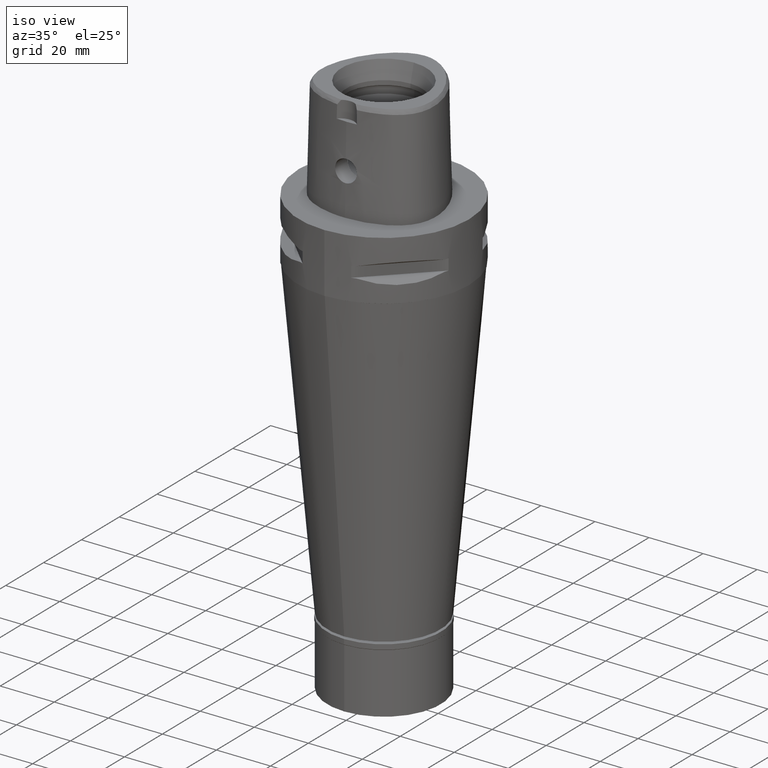
[diagram: clean part render]
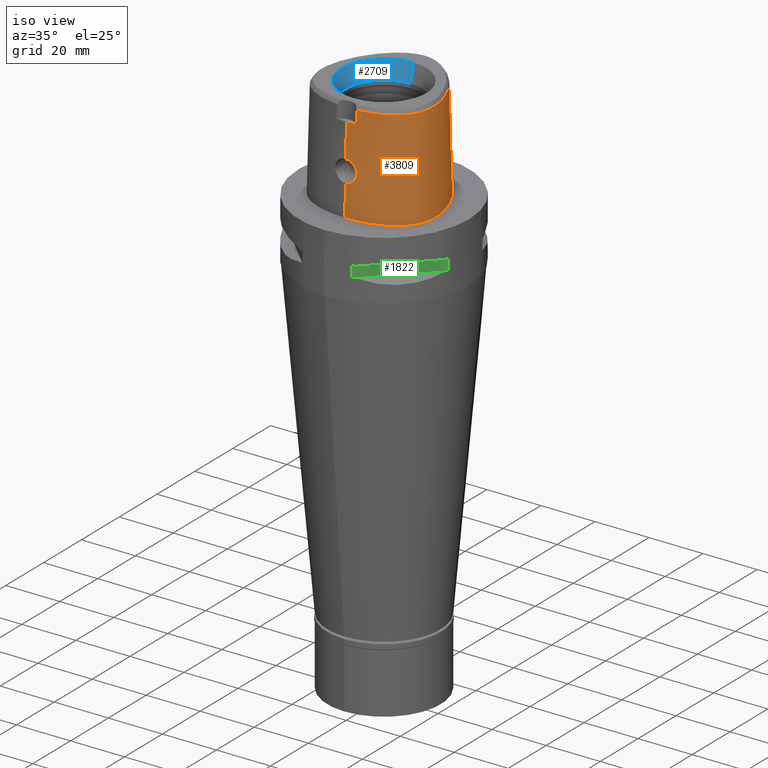
[diagram: same view with three faces highlighted in distinct colors, each labeled with its STEP entity id]
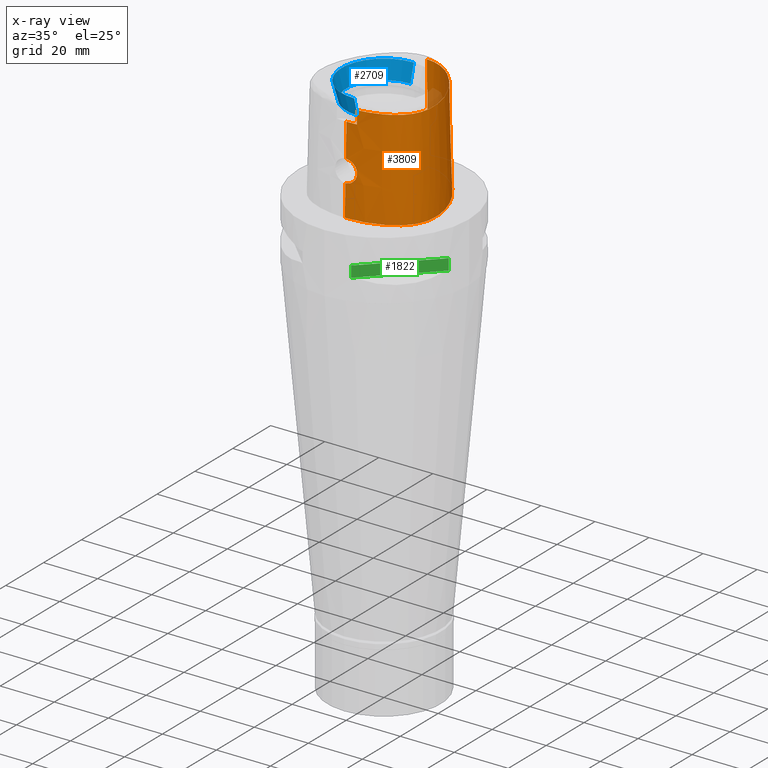
[diagram: x-ray of the same camera — body ghosted, the three highlighted faces saturated]
A machine part, iso view with three faces highlighted in distinct colors.
The next image is the same camera in x-ray (body ghosted, the three faces saturated) — at least one of them is partly hidden behind the body in this view.
Their STEP definitions:

[orange] entity #3809 — the highlighted face is a freeform B-spline surface patch.
#8 = CARTESIAN_POINT ( 'NONE',  ( -0.6657939564106000185, -19.73734232019999979, 37.25231677540000419 ) ) ;
#60 = CARTESIAN_POINT ( 'NONE',  ( 14.68244497000000059, -17.23001772821000088, -0.7304375838314000058 ) ) ;
#62 = CARTESIAN_POINT ( 'NONE',  ( 16.39211273426609594, -14.95758104716074932, 36.52186680739955449 ) ) ;
#81 = CARTESIAN_POINT ( 'NONE',  ( 18.12052909025000247, -13.74516032106999930, 24.59139865566000083 ) ) ;
#118 = CARTESIAN_POINT ( 'NONE',  ( 1.029075032816727298, -20.37061658179028711, 11.58059618244477029 ) ) ;
#122 = EDGE_CURVE ( 'NONE', #2846, #2325, #1752, .T. ) ;
#142 = CARTESIAN_POINT ( 'NONE',  ( 3.637738219117000238, -19.56971420299000286, 36.52185956443999970 ) ) ;
#153 = CARTESIAN_POINT ( 'NONE',  ( 6.341471019211626370, -20.29812500000441844, 8.272462576064400094E-14 ) ) ;
#156 = CARTESIAN_POINT ( 'NONE',  ( 2.282426779291145458, -20.29697268062908577, 12.15178042133221048 ) ) ;
#187 = CARTESIAN_POINT ( 'NONE',  ( 1.528203702475598114, -20.34813849356515192, 11.74937770678980264 ) ) ;
#197 = CARTESIAN_POINT ( 'NONE',  ( -1.812907624365000383E-11, 22.56201468012000078, 36.52186680743999858 ) ) ;
#198 = CARTESIAN_POINT ( 'NONE',  ( 10.14358078388000095, 18.45723421046000112, 37.25231677540000419 ) ) ;
#220 = CARTESIAN_POINT ( 'NONE',  ( 2.373090332134999869, 22.37624354104000091, 37.25231677540000419 ) ) ;
#223 = CARTESIAN_POINT ( 'NONE',  ( 3.704239288984441103, -19.64128042389065598, 33.37395322129999897 ) ) ;
#227 = CARTESIAN_POINT ( 'NONE',  ( 3.438614496833577228, -20.17221373686729535, 13.35618706787884946 ) ) ;
#244 = CARTESIAN_POINT ( 'NONE',  ( 2.438150623185000310, 22.68791648787000170, 24.59139865566000083 ) ) ;
#252 = CARTESIAN_POINT ( 'NONE',  ( 3.266229437020721438, -20.07524359687617377, 17.89916302261439540 ) ) ;
#272 = CARTESIAN_POINT ( 'NONE',  ( 20.76670354687000142, 4.663413653177999940, -0.7304375838314000058 ) ) ;
#279 = CARTESIAN_POINT ( 'NONE',  ( 3.756069937840027961, -20.04746516202720841, 17.01476473572080295 ) ) ;
#294 = CARTESIAN_POINT ( 'NONE',  ( 20.09084478000999852, -11.59945464141000038, 11.93048053591000013 ) ) ;
#301 = CARTESIAN_POINT ( 'NONE',  ( 0.4954876483524821573, -20.18628283969000492, 19.54999999999999716 ) ) ;
#308 = B_SPLINE_SURFACE_WITH_KNOTS ( 'NONE', 3, 3, ( 
 ( #1291, #2001, #3508, #8 ),
 ( #2761, #3131, #4721, #4286 ),
 ( #3959, #1944, #3567, #4696 ),
 ( #4336, #1216, #2355, #823 ),
 ( #1193, #1640, #3982, #3211 ),
 ( #60, #4311, #798, #1974 ),
 ( #3590, #1612, #3180, #1238 ),
 ( #2789, #4366, #81, #2981 ),
 ( #3731, #4165, #2138, #3347 ),
 ( #3789, #294, #1371, #629 ),
 ( #1830, #1850, #2182, #3003 ),
 ( #3710, #4194, #3324, #684 ),
 ( #2211, #2841, #2237, #4144 ),
 ( #1755, #2957, #4912, #608 ),
 ( #2620, #1804, #3811, #1399 ),
 ( #272, #3403, #4546, #4122 ),
 ( #1044, #4496, #1424, #1778 ),
 ( #4962, #3425, #2593, #4033 ),
 ( #2924, #655, #4885, #198 ),
 ( #4525, #4982, #1443, #1020 ),
 ( #3756, #995, #4573, #1072 ),
 ( #4413, #2549, #244, #220 ),
 ( #2570, #3380, #906, #2459 ),
 ( #583, #2159, #4940, #2285 ),
 ( #1580, #3832, #2696, #1988 ) ),
 .UNSPECIFIED., .F., .F., .F.,
 ( 4, 1, 1, 1, 1, 1, 1, 1, 1, 1, 1, 1, 1, 1, 1, 1, 1, 1, 1, 1, 1, 1, 4 ),
 ( 4, 4 ),
 ( -0.008985960173571999957, 0.0000000000000000000, 0.08333333333337000770, 0.1666666666667000196, 0.2083333333333000081, 0.2500000000000000000, 0.2916666666666999919, 0.3124999999998999689, 0.3333333333332000326, 0.3541666666666000163, 0.3749999999998999689, 0.4166666666666000163, 0.4583333333332000326, 0.4999999999998999689, 0.5833333333331000015, 0.6666666666664999852, 0.7499999999998000488, 0.8333333333329999704, 0.8749999999997000177, 0.9166666666664000651, 0.9583333333329999704, 1.000000000000000000, 1.011710456763000199 ),
 ( 3.724331815169000051E-09, 0.9999998100590999917 ),
 .UNSPECIFIED. ) ;
#326 = CARTESIAN_POINT ( 'NONE',  ( 4.048214080092304101, -20.05577732092616827, 15.37582243512925650 ) ) ;
#450 = CARTESIAN_POINT ( 'NONE',  ( 14.22011350746591596, -16.41829354687929765, 36.52186680739955449 ) ) ;
#508 = ORIENTED_EDGE ( 'NONE', *, *, #4844, .T. ) ;
#512 = CARTESIAN_POINT ( 'NONE',  ( 2.503154195452031772, -19.81241979350864568, 31.80000012137773524 ) ) ;
#514 = ORIENTED_EDGE ( 'NONE', *, *, #3490, .F. ) ;
#527 = CARTESIAN_POINT ( 'NONE',  ( 17.90324024157959215, -13.53935104436711967, 36.52186680739955449 ) ) ;
#583 = CARTESIAN_POINT ( 'NONE',  ( -0.4812391253146999781, 23.48607176047999801, -0.7304375838314000058 ) ) ;
#594 = CARTESIAN_POINT ( 'NONE',  ( 22.05732874321672554, -6.847636718749787299, 8.272462576064398831E-14 ) ) ;
#608 = CARTESIAN_POINT ( 'NONE',  ( 21.31039837242000345, -4.105938496789999448, 37.25231677540000419 ) ) ;
#617 = CARTESIAN_POINT ( 'NONE',  ( 2.844443223519995456, -20.24438370416207889, 12.61699047241434890 ) ) ;
#629 = CARTESIAN_POINT ( 'NONE',  ( 19.54161185391000188, -11.28235486248999919, 37.25231677540000419 ) ) ;
#633 = CARTESIAN_POINT ( 'NONE',  ( 3.637738219117000238, -19.56971420299000286, 36.52185956443999970 ) ) ;
#637 = CARTESIAN_POINT ( 'NONE',  ( 2.360818685576765663, -20.12553152717674010, 18.79091723954073601 ) ) ;
#655 = CARTESIAN_POINT ( 'NONE',  ( 10.55288408568999969, 18.94467590726999973, 11.93048053591000013 ) ) ;
#657 = CARTESIAN_POINT ( 'NONE',  ( -1.812907624365000383E-11, 22.56201468012000078, 36.52186680743999858 ) ) ;
#665 = CARTESIAN_POINT ( 'NONE',  ( 1.615797869211351045, -20.15746371882925558, 19.21438957845422024 ) ) ;
#684 = CARTESIAN_POINT ( 'NONE',  ( 20.65947761832000040, -8.729764392901000036, 37.25231677540000419 ) ) ;
#690 = CARTESIAN_POINT ( 'NONE',  ( 3.927835586672352441, -20.09244225005366147, 14.47776275463072437 ) ) ;
#713 = CARTESIAN_POINT ( 'NONE',  ( 2.306577398820751412, -20.12825059843537190, 18.82915933036016298 ) ) ;
#798 = CARTESIAN_POINT ( 'NONE',  ( 14.36818034196999960, -16.67825731694999902, 24.59139865566000083 ) ) ;
#823 = CARTESIAN_POINT ( 'NONE',  ( 6.175998609166999387, -19.37631798792000026, 37.25231677540000419 ) ) ;
#906 = CARTESIAN_POINT ( 'NONE',  ( 0.5826623333995999410, 22.88447448261999995, 24.59139865566000083 ) ) ;
#911 = CARTESIAN_POINT ( 'NONE',  ( 1.488283991415337182, -20.35025562760707629, 11.73330004244571612 ) ) ;
#936 = CARTESIAN_POINT ( 'NONE',  ( 20.74942740879365033, 4.657187499999517755, 8.272462576064398831E-14 ) ) ;
#937 = CARTESIAN_POINT ( 'NONE',  ( 1.946932004676015460, -20.32307767112847330, 11.93880059974637220 ) ) ;
#955 = CARTESIAN_POINT ( 'NONE',  ( 2.714805267639514685, -20.25771215066832198, 12.49436786205451000 ) ) ;
#976 = CARTESIAN_POINT ( 'NONE',  ( 14.67337964419171747, -17.21410156250057355, 8.272462576064398831E-14 ) ) ;
#987 = CARTESIAN_POINT ( 'NONE',  ( 2.041042029990999821E-08, -19.88004246002000031, 31.80000004972000127 ) ) ;
#995 = CARTESIAN_POINT ( 'NONE',  ( 4.987110684473000433, 22.24795284821000152, 11.93048053591000013 ) ) ;
#1005 = CARTESIAN_POINT ( 'NONE',  ( 2.041042029990999821E-08, -19.88004246002000031, 31.80000004972000127 ) ) ;
#1008 = CARTESIAN_POINT ( 'NONE',  ( 4.038472190140932838, -20.06169765068718647, 15.18805390983103010 ) ) ;
#1020 = CARTESIAN_POINT ( 'NONE',  ( 7.099337800131999998, 20.50831394757999959, 37.25231677540000419 ) ) ;
#1030 = CARTESIAN_POINT ( 'NONE',  ( 2.113823673067903197, -20.67499999999817462, 8.272462576064398831E-14 ) ) ;
#1031 = CARTESIAN_POINT ( 'NONE',  ( 2.673773366373647598, -20.10928484861024401, 18.54484060076604734 ) ) ;
#1044 = CARTESIAN_POINT ( 'NONE',  ( 18.08416038108999757, 10.44089487092999846, -0.7304375838314000058 ) ) ;
#1054 = CARTESIAN_POINT ( 'NONE',  ( 3.560199545960235135, -20.05783334522597272, 17.44879127146176501 ) ) ;
#1059 = CARTESIAN_POINT ( 'NONE',  ( 0.7901461619506587875, 22.56201467849566100, 36.52186680739955449 ) ) ;
#1072 = CARTESIAN_POINT ( 'NONE',  ( 4.750826222997999615, 21.65775806429000028, 37.25231677540000419 ) ) ;
#1082 = B_SPLINE_CURVE_WITH_KNOTS ( 'NONE', 3,
 ( #2607, #1059, #4181, #3415, #1455, #2634, #5001, #1486, #4206, #2659, #4416, #2078, #4746, #3647, #4368, #1568, #527, #62, #450, #4723, #2386, #2763, #3134 ),
 .UNSPECIFIED., .F., .F.,
 ( 4, 1, 1, 1, 1, 1, 1, 1, 1, 1, 1, 1, 1, 1, 1, 1, 1, 1, 1, 1, 4 ),
 ( 0.0000000000000000000, 0.04382683003322050685, 0.08765366006602014204, 0.1314804900989251235, 0.1753073201318300911, 0.2629609801974294725, 0.3506146402631342140, 0.4382683003289440382, 0.5259219603945435306, 0.5697487904274484150, 0.6135756204602481612, 0.6574024504931531565, 0.6793158655095529186, 0.7012292805260580408, 0.7231426955424579139, 0.7450561105587525379, 0.7888829405916575332, 0.8327097706245624176, 0.8765366006573621638, 0.9641902607230983246, 1.000000000000000000 ),
 .UNSPECIFIED. ) ;
#1108 = CARTESIAN_POINT ( 'NONE',  ( 3.787481123649921066, -20.04605982308304135, 16.93510773912660028 ) ) ;
#1193 = CARTESIAN_POINT ( 'NONE',  ( 11.23887130169999971, -18.91049775788000176, -0.7304375838314000058 ) ) ;
#1216 = CARTESIAN_POINT ( 'NONE',  ( 6.288476587236999649, -20.00290576084000094, 11.93048053591000013 ) ) ;
#1223 = VERTEX_POINT ( 'NONE', #197 ) ;
#1238 = CARTESIAN_POINT ( 'NONE',  ( 16.38077695839999848, -14.94316464535999955, 37.25231677540000419 ) ) ;
#1291 = CARTESIAN_POINT ( 'NONE',  ( -0.6840631435738999677, -20.68668116151000191, -0.7304375838314000058 ) ) ;
#1314 = CARTESIAN_POINT ( 'NONE',  ( 18.56841065141249203, -14.16937988280826666, 8.272462576064398831E-14 ) ) ;
#1339 = CARTESIAN_POINT ( 'NONE',  ( 3.799129736973999684E-11, 23.47499999999000053, 6.972200594645999482E-14 ) ) ;
#1340 = CARTESIAN_POINT ( 'NONE',  ( 1.223097168518407996, -20.36283687392326414, 11.63851210756520160 ) ) ;
#1346 = CARTESIAN_POINT ( 'NONE',  ( 6.841558715605016302E-09, -20.08420636276333937, 23.63333344114104406 ) ) ;
#1357 = CARTESIAN_POINT ( 'NONE',  ( -6.936546298697000348E-13, -20.38876923348000147, 11.44999999999999929 ) ) ;
#1371 = CARTESIAN_POINT ( 'NONE',  ( 19.81622831695999665, -11.44090475194999890, 24.59139865566000083 ) ) ;
#1379 = CARTESIAN_POINT ( 'NONE',  ( 20.93173252211499857, -10.60431640624921812, 8.272462576064398831E-14 ) ) ;
#1380 = CARTESIAN_POINT ( 'NONE',  ( -6.936546298697000348E-13, -20.38876923348000147, 11.44999999999999929 ) ) ;
#1399 = CARTESIAN_POINT ( 'NONE',  ( 21.05621915657000187, -0.4440251511041000132, 37.25231677540000419 ) ) ;
#1413 = CARTESIAN_POINT ( 'NONE',  ( 3.346839698137018093, -20.07044986577229650, 17.78445641054263859 ) ) ;
#1418 = CARTESIAN_POINT ( 'NONE',  ( 6.821570765464663792E-09, -19.98212988583510707, 27.71666688228189912 ) ) ;
#1424 = CARTESIAN_POINT ( 'NONE',  ( 17.53318585915999961, 10.12278934540000108, 24.59139865566000083 ) ) ;
#1432 = CARTESIAN_POINT ( 'NONE',  ( 3.860417298872394376, -20.04330287886046946, 16.72646853219081819 ) ) ;
#1443 = CARTESIAN_POINT ( 'NONE',  ( 7.259695479736000046, 20.78233571866999796, 24.59139865566000083 ) ) ;
#1451 = CARTESIAN_POINT ( 'NONE',  ( 1.028316776408453537, -20.17741541788669934, 19.45785258273985008 ) ) ;
#1455 = CARTESIAN_POINT ( 'NONE',  ( 7.108589361577037913, 20.52412316394416436, 36.52186680739955449 ) ) ;
#1476 = CARTESIAN_POINT ( 'NONE',  ( 3.728050960354355237, -20.12836678376847033, 13.91746580426512736 ) ) ;
#1486 = CARTESIAN_POINT ( 'NONE',  ( 17.27359236349014537, 9.972912859139864139, 36.52186680739955449 ) ) ;
#1503 = CARTESIAN_POINT ( 'NONE',  ( 3.047166273135561099, -20.22275119218791062, 12.81895386053285613 ) ) ;
#1543 = VECTOR ( 'NONE', #2118, 1000.000000000000114 ) ;
#1565 = B_SPLINE_CURVE_WITH_KNOTS ( 'NONE', 3,
 ( #987, #1418, #1346, #3296 ),
 .UNSPECIFIED., .F., .F.,
 ( 4, 4 ),
 ( 0.0000000000000000000, 1.000000000000000000 ),
 .UNSPECIFIED. ) ;
#1568 = CARTESIAN_POINT ( 'NONE',  ( 18.90964962507477765, -12.28759713487705874, 36.52186680739955449 ) ) ;
#1580 = CARTESIAN_POINT ( 'NONE',  ( -0.7217521646258999723, 23.47150798456999965, -0.7304375838314000058 ) ) ;
#1612 = CARTESIAN_POINT ( 'NONE',  ( 16.77374385921000410, -15.44292476796000102, 11.93048053591000013 ) ) ;
#1640 = CARTESIAN_POINT ( 'NONE',  ( 11.13012657160999908, -18.61140120457999814, 11.93048053591000013 ) ) ;
#1655 = VERTEX_POINT ( 'NONE', #4913 ) ;
#1675 = CARTESIAN_POINT ( 'NONE',  ( 1.319918021587722201, -20.35862286549530964, 11.67005492354040719 ) ) ;
#1693 = CARTESIAN_POINT ( 'NONE',  ( 1.538196023384282407, -20.34760033576342408, 11.75346900688112228 ) ) ;
#1741 = CARTESIAN_POINT ( 'NONE',  ( 2.397021025743683253, -20.28738711155108021, 12.23221059366157881 ) ) ;
#1752 = B_SPLINE_CURVE_WITH_KNOTS ( 'NONE', 3,
 ( #4890, #223, #2596, #633 ),
 .UNSPECIFIED., .F., .F.,
 ( 4, 4 ),
 ( 0.0000000000000000000, 1.000000000000000000 ),
 .UNSPECIFIED. ) ;
#1755 = CARTESIAN_POINT ( 'NONE',  ( 22.26285556298000046, -4.100361500063000264, -0.7304375838314000058 ) ) ;
#1764 = CARTESIAN_POINT ( 'NONE',  ( 7.571159434350515305, 21.31457031249845713, 8.272462576064398831E-14 ) ) ;
#1778 = CARTESIAN_POINT ( 'NONE',  ( 17.25769859819999752, 9.963736582635000616, 37.25231677540000419 ) ) ;
#1785 = CARTESIAN_POINT ( 'NONE',  ( 3.507024072564136841, -20.16249844635295929, 13.46998661760523319 ) ) ;
#1804 = CARTESIAN_POINT ( 'NONE',  ( 21.68301106123999844, -0.3332743947980000288, 11.93048053591000013 ) ) ;
#1815 = CARTESIAN_POINT ( 'NONE',  ( 3.664531516593255933, -20.05177522854884486, 17.23667186347703506 ) ) ;
#1830 = CARTESIAN_POINT ( 'NONE',  ( 20.94844325647000360, -10.61175396900999957, -0.7304375838314000058 ) ) ;
#1838 = CARTESIAN_POINT ( 'NONE',  ( 3.714884036183550897, -20.13054316305255043, 13.88679975161858771 ) ) ;
#1850 = CARTESIAN_POINT ( 'NONE',  ( 20.65879052764999813, -10.48283621449000158, 11.93048053591000013 ) ) ;
#1861 = CARTESIAN_POINT ( 'NONE',  ( 2.808534909594999185, -20.24816297014837119, 12.58189563908294772 ) ) ;
#1862 = EDGE_CURVE ( 'NONE', #1223, #2116, #4167, .T. ) ;
#1890 = CARTESIAN_POINT ( 'NONE',  ( 4.049638794384611273, -20.05404294443376756, 15.43768675189062201 ) ) ;
#1944 = CARTESIAN_POINT ( 'NONE',  ( 1.870063864395000053, -20.39691455662999786, 11.93048053591000013 ) ) ;
#1974 = CARTESIAN_POINT ( 'NONE',  ( 14.21104802796000044, -16.40237711131999987, 37.25231677540000419 ) ) ;
#1981 = ORIENTED_EDGE ( 'NONE', *, *, #122, .F. ) ;
#1988 = CARTESIAN_POINT ( 'NONE',  ( -0.6642815369397000458, 22.52377652691999899, 37.25231677540000419 ) ) ;
#2001 = CARTESIAN_POINT ( 'NONE',  ( -0.6779734145193999639, -20.37023488108000180, 11.93048053591000013 ) ) ;
#2055 = CARTESIAN_POINT ( 'NONE',  ( 0.2521712344239960824, -20.38876923348000858, 11.44999999999999751 ) ) ;
#2078 = CARTESIAN_POINT ( 'NONE',  ( 21.14970177531030515, -6.717195943319264728, 36.52186680739955449 ) ) ;
#2080 = CARTESIAN_POINT ( 'NONE',  ( 0.5103796633626155321, -20.38531158553910672, 11.47362071399299488 ) ) ;
#2116 = VERTEX_POINT ( 'NONE', #2647 ) ;
#2118 = DIRECTION ( 'NONE',  ( -4.234888734594874864E-13, -0.02499051295389925070, -0.9996876883618708298 ) ) ;
#2121 = CARTESIAN_POINT ( 'NONE',  ( 1.512241740947312119, -20.34898939911309412, 11.74291348788425182 ) ) ;
#2138 = CARTESIAN_POINT ( 'NONE',  ( 19.15132530712000047, -12.46323155742999944, 24.59139865566000083 ) ) ;
#2147 = CARTESIAN_POINT ( 'NONE',  ( 22.24453907854652357, -4.100468750000057838, 8.272462576064398831E-14 ) ) ;
#2159 = CARTESIAN_POINT ( 'NONE',  ( -0.4685451983326999748, 23.16976078520999849, 11.93048053591000013 ) ) ;
#2168 = CARTESIAN_POINT ( 'NONE',  ( 3.828843160387038314, -20.04436026481759825, 16.82309517697779810 ) ) ;
#2182 = CARTESIAN_POINT ( 'NONE',  ( 20.36913779882999620, -10.35391845995999915, 24.59139865566000083 ) ) ;
#2190 = CARTESIAN_POINT ( 'NONE',  ( 2.441475652817581388, -20.12145690552322819, 18.73255419730240945 ) ) ;
#2211 = CARTESIAN_POINT ( 'NONE',  ( 22.07548128872999982, -6.850245535142999387, -0.7304375838314000058 ) ) ;
#2216 = EDGE_LOOP ( 'NONE', ( #3460, #2796, #1981, #4231, #2440, #514, #508, #3564 ) ) ;
#2223 = CARTESIAN_POINT ( 'NONE',  ( 3.217746676397107208, -20.20246117936812880, 13.02641545331656481 ) ) ;
#2237 = CARTESIAN_POINT ( 'NONE',  ( 21.44619304427000017, -6.759806566843999498, 24.59139865566000083 ) ) ;
#2238 = B_SPLINE_CURVE_WITH_KNOTS ( 'NONE', 3,
 ( #4441, #1030, #153, #4825, #976, #3356, #1314, #2866, #2528, #1379, #4058, #594, #2147, #2890, #936, #4922, #3719, #3287, #1764, #2933, #4851, #3331, #1339 ),
 .UNSPECIFIED., .F., .F.,
 ( 4, 1, 1, 1, 1, 1, 1, 1, 1, 1, 1, 1, 1, 1, 1, 1, 1, 1, 1, 1, 4 ),
 ( 0.0000000000000000000, 0.08333333333337000770, 0.1666666666667000196, 0.2083333333333000081, 0.2500000000000000000, 0.2916666666666999919, 0.3124999999998999689, 0.3333333333332000326, 0.3541666666666000163, 0.3749999999998999689, 0.4166666666666000163, 0.4583333333332000326, 0.4999999999998999689, 0.5833333333331000015, 0.6666666666664999852, 0.7499999999998000488, 0.8333333333329999704, 0.8749999999997000177, 0.9166666666664000651, 0.9583333333329999704, 1.000000000000000000 ),
 .UNSPECIFIED. ) ;
#2244 = CARTESIAN_POINT ( 'NONE',  ( 4.002668943114965572, -20.07400334792053087, 14.86854796123505729 ) ) ;
#2266 = CARTESIAN_POINT ( 'NONE',  ( 3.918450559639469866, -20.04172061130668325, 16.53268210946603389 ) ) ;
#2285 = CARTESIAN_POINT ( 'NONE',  ( -0.4431573443685999925, 22.53713883466999945, 37.25231677540000419 ) ) ;
#2288 = EDGE_CURVE ( 'NONE', #2846, #4860, #4923, .T. ) ;
#2325 = VERTEX_POINT ( 'NONE', #142 ) ;
#2344 = B_SPLINE_CURVE_WITH_KNOTS ( 'NONE', 3,
 ( #1380, #2055, #2080, #3627, #118, #1340, #1675, #4805, #911, #2121, #187, #1693, #4443, #937, #156, #1741, #2891, #4462, #955, #2507, #1861, #4949, #617, #3432, #1503, #2223, #227, #1785, #4152, #3044, #4992, #1838, #1476, #4610, #3843, #690, #2244, #2580, #1008, #4223, #326, #1890, #4556, #3797, #3459, #4534, #2266, #1432, #2168, #1108, #3067, #279, #3358, #4924, #1815, #1054, #1413, #252, #5024, #2558, #4175, #3740, #4132, #4201, #3410, #2968, #2654, #1031, #2630, #2190, #637, #713, #3819, #3766, #3389, #4970, #2989, #2600, #665, #1451, #301, #3013 ),
 .UNSPECIFIED., .F., .F.,
 ( 4, 2, 2, 1, 1, 1, 2, 2, 2, 2, 2, 1, 1, 2, 2, 2, 2, 1, 1, 2, 2, 2, 2, 1, 2, 2, 2, 2, 1, 1, 1, 2, 2, 2, 2, 2, 1, 1, 2, 2, 2, 1, 2, 2, 2, 2, 2, 4 ),
 ( 0.0000000000000000000, 0.06249999999999680811, 0.09374999999999525380, 0.1093749999999945044, 0.1171874999999941436, 0.1210937499999939770, 0.1230468749999939909, 0.1249999999999940048, 0.1874999999999988620, 0.2187500000000011380, 0.2343750000000023315, 0.2421875000000029143, 0.2460937500000032196, 0.2480468750000034972, 0.2500000000000037748, 0.3125000000000161537, 0.3437500000000225375, 0.3593750000000257017, 0.3671875000000273115, 0.3710937500000281442, 0.3750000000000289213, 0.4375000000000430211, 0.4687500000000503486, 0.4843750000000539568, 0.4921875000000559552, 0.5000000000000579536, 0.5625000000000732747, 0.5937500000000809353, 0.6093750000000843769, 0.6171875000000860423, 0.6210937500000864864, 0.6230468750000863754, 0.6250000000000862643, 0.6875000000000813793, 0.7187500000000788258, 0.7343750000000773825, 0.7421875000000767164, 0.7460937500000764944, 0.7480468750000761613, 0.7500000000000758282, 0.7812500000000663913, 0.7968750000000615064, 0.8046875000000591749, 0.8125000000000567324, 0.8437500000000472955, 0.8593750000000425215, 0.8750000000000376366, 1.000000000000000000 ),
 .UNSPECIFIED. ) ;
#2355 = CARTESIAN_POINT ( 'NONE',  ( 6.232237598201999518, -19.68961187437999882, 24.59139865566000083 ) ) ;
#2386 = CARTESIAN_POINT ( 'NONE',  ( 7.300578979383865352, -19.07170738130680832, 36.52186680739955449 ) ) ;
#2440 = ORIENTED_EDGE ( 'NONE', *, *, #3935, .T. ) ;
#2443 = CARTESIAN_POINT ( 'NONE',  ( 3.736696120837999402, -19.67778323291999953, 31.80000004972999861 ) ) ;
#2459 = CARTESIAN_POINT ( 'NONE',  ( 0.5662264631412998739, 22.56729423635999865, 37.25231677540000419 ) ) ;
#2507 = CARTESIAN_POINT ( 'NONE',  ( 2.758139611129263091, -20.25337176693246732, 12.53387256028085517 ) ) ;
#2528 = CARTESIAN_POINT ( 'NONE',  ( 20.34961798556690837, -11.74885742187212223, 8.272462576064398831E-14 ) ) ;
#2549 = CARTESIAN_POINT ( 'NONE',  ( 2.503210914235999951, 22.99958943470999628, 11.93048053591000013 ) ) ;
#2558 = CARTESIAN_POINT ( 'NONE',  ( 3.080402072178444861, -20.08615456365791729, 18.13051688291887942 ) ) ;
#2570 = CARTESIAN_POINT ( 'NONE',  ( 0.6155340739162999952, 23.51883497514999988, -0.7304375838314000058 ) ) ;
#2580 = CARTESIAN_POINT ( 'NONE',  ( 4.020733927300638832, -20.06862206084555922, 14.99753541347952002 ) ) ;
#2593 = CARTESIAN_POINT ( 'NONE',  ( 13.93560872666999906, 15.24203796728999905, 24.59139865566000083 ) ) ;
#2596 = CARTESIAN_POINT ( 'NONE',  ( 3.671249151389730514, -19.60525176641679579, 34.94790639287000289 ) ) ;
#2600 = CARTESIAN_POINT ( 'NONE',  ( 1.676170890441996519, -20.15531313274218306, 19.18748000605743087 ) ) ;
#2607 = CARTESIAN_POINT ( 'NONE',  ( -1.812907624365000383E-11, 22.56201468012000078, 36.52186680743999858 ) ) ;
#2620 = CARTESIAN_POINT ( 'NONE',  ( 21.99640701358000072, -0.2778990166449999966, -0.7304375838314000058 ) ) ;
#2630 = CARTESIAN_POINT ( 'NONE',  ( 2.519944104988522060, -20.11739423957299167, 18.67124364917522783 ) ) ;
#2634 = CARTESIAN_POINT ( 'NONE',  ( 10.15538781007174229, 18.47129526703040625, 36.52186680739955449 ) ) ;
#2647 = CARTESIAN_POINT ( 'NONE',  ( 3.799129736973999684E-11, 23.47499999999000053, 6.972200594645999482E-14 ) ) ;
#2654 = CARTESIAN_POINT ( 'NONE',  ( 2.772180003756187894, -20.10389984255201767, 18.45552640414263479 ) ) ;
#2659 = CARTESIAN_POINT ( 'NONE',  ( 21.07429999882750238, -0.4408303635841588908, 36.52186680739955449 ) ) ;
#2696 = CARTESIAN_POINT ( 'NONE',  ( -0.6834384128350999843, 22.83968701280999980, 24.59139865566000083 ) ) ;
#2761 = CARTESIAN_POINT ( 'NONE',  ( -0.4561077449369999592, -20.69106755381000085, -0.7304375838314000058 ) ) ;
#2763 = CARTESIAN_POINT ( 'NONE',  ( 4.467522181836078410, -19.48130276147388429, 36.52186680739955449 ) ) ;
#2789 = CARTESIAN_POINT ( 'NONE',  ( 18.58171406411999982, -14.18198046384999955, -0.7304375838314000058 ) ) ;
#2796 = ORIENTED_EDGE ( 'NONE', *, *, #4586, .T. ) ;
#2841 = CARTESIAN_POINT ( 'NONE',  ( 21.76083716650000000, -6.805026050993999931, 11.93048053591000013 ) ) ;
#2846 = VERTEX_POINT ( 'NONE', #3222 ) ;
#2866 = CARTESIAN_POINT ( 'NONE',  ( 19.64947365863153905, -12.82525390625595918, 8.272462576064398831E-14 ) ) ;
#2890 = CARTESIAN_POINT ( 'NONE',  ( 21.97832647786808380, -0.2810937499999818789, 8.272462576064398831E-14 ) ) ;
#2891 = CARTESIAN_POINT ( 'NONE',  ( 2.570157103600570814, -20.27168289956678393, 12.36915238101241243 ) ) ;
#2924 = CARTESIAN_POINT ( 'NONE',  ( 10.75753573659999951, 19.18839675567999947, -0.7304375838314000058 ) ) ;
#2933 = CARTESIAN_POINT ( 'NONE',  ( 5.098437017283806050, 22.52602539062440812, 8.272462576064398831E-14 ) ) ;
#2957 = CARTESIAN_POINT ( 'NONE',  ( 21.94536983279999731, -4.102220498972000584, 11.93048053591000013 ) ) ;
#2968 = CARTESIAN_POINT ( 'NONE',  ( 2.871827064480840797, -20.09820085661024791, 18.35572725119102344 ) ) ;
#2981 = CARTESIAN_POINT ( 'NONE',  ( 17.88993660331999891, -13.52675024969000006, 37.25231677540000419 ) ) ;
#2989 = CARTESIAN_POINT ( 'NONE',  ( 1.798140377637001297, -20.15076695762397563, 19.12956592877852202 ) ) ;
#3003 = CARTESIAN_POINT ( 'NONE',  ( 20.07948507000999783, -10.22500070543999939, 37.25231677540000419 ) ) ;
#3013 = CARTESIAN_POINT ( 'NONE',  ( 0.0000000000000000000, -20.18628283968999781, 19.55000000000000071 ) ) ;
#3044 = CARTESIAN_POINT ( 'NONE',  ( 3.646186824048230690, -20.14160291728383356, 13.73489521538706448 ) ) ;
#3067 = CARTESIAN_POINT ( 'NONE',  ( 3.765664028142179820, -20.04702608754462290, 16.99090190460270478 ) ) ;
#3131 = CARTESIAN_POINT ( 'NONE',  ( -0.4520500676072000124, -20.37458451793000336, 11.93048053591000013 ) ) ;
#3134 = CARTESIAN_POINT ( 'NONE',  ( 3.637738219117000238, -19.56971420299000286, 36.52185956443999970 ) ) ;
#3180 = CARTESIAN_POINT ( 'NONE',  ( 16.57726040880999818, -15.19304470666000029, 24.59139865566000083 ) ) ;
#3211 = CARTESIAN_POINT ( 'NONE',  ( 10.91263711141999870, -18.01320809799000244, 37.25231677540000419 ) ) ;
#3222 = CARTESIAN_POINT ( 'NONE',  ( 3.736696120837999402, -19.67778323291999953, 31.80000004972999861 ) ) ;
#3239 = CARTESIAN_POINT ( 'NONE',  ( -5.544117086856001062E-12, -20.67499999999999716, 7.268260067878999272E-14 ) ) ;
#3241 = CARTESIAN_POINT ( 'NONE',  ( -6.936546298697000348E-13, -20.38876923348000147, 11.44999999999999929 ) ) ;
#3287 = CARTESIAN_POINT ( 'NONE',  ( 10.74572891058595836, 19.17433593750250154, 8.272462576064398831E-14 ) ) ;
#3296 = CARTESIAN_POINT ( 'NONE',  ( 0.0000000000000000000, -20.18628283968999781, 19.55000000000000071 ) ) ;
#3324 = CARTESIAN_POINT ( 'NONE',  ( 20.96392254231999885, -8.820258326767998369, 24.59139865566000083 ) ) ;
#3331 = CARTESIAN_POINT ( 'NONE',  ( 0.8548392423473054613, 23.47500000000443876, 8.272462576064398831E-14 ) ) ;
#3347 = CARTESIAN_POINT ( 'NONE',  ( 18.89485288851999911, -12.27684381349000020, 37.25231677540000419 ) ) ;
#3356 = CARTESIAN_POINT ( 'NONE',  ( 16.95889172593307848, -15.67838867187729868, 8.272462576064398831E-14 ) ) ;
#3358 = CARTESIAN_POINT ( 'NONE',  ( 3.749619629275788846, -20.04776342526934485, 17.03066201961066994 ) ) ;
#3380 = CARTESIAN_POINT ( 'NONE',  ( 0.5990982036580000392, 23.20165472888000124, 11.93048053591000013 ) ) ;
#3389 = CARTESIAN_POINT ( 'NONE',  ( 2.033286809333374467, -20.14125756236685305, 19.00511957505245419 ) ) ;
#3403 = CARTESIAN_POINT ( 'NONE',  ( 20.46725048688000115, 4.555493664750999372, 11.93048053591000013 ) ) ;
#3410 = CARTESIAN_POINT ( 'NONE',  ( 2.880252252186726203, -20.09771858834476532, 18.34723526985665387 ) ) ;
#3415 = CARTESIAN_POINT ( 'NONE',  ( 4.757642236485008169, 21.67478320247315082, 36.52186680739955449 ) ) ;
#3425 = CARTESIAN_POINT ( 'NONE',  ( 14.17879762243000030, 15.44741198413000127, 11.93048053591000013 ) ) ;
#3432 = CARTESIAN_POINT ( 'NONE',  ( 2.852894669148333673, -20.24348581819178250, 12.62535896507192490 ) ) ;
#3459 = CARTESIAN_POINT ( 'NONE',  ( 4.026066118139421057, -20.04247127186134492, 16.01314433202412246 ) ) ;
#3460 = ORIENTED_EDGE ( 'NONE', *, *, #1862, .F. ) ;
#3490 = EDGE_CURVE ( 'NONE', #4740, #1655, #2344, .T. ) ;
#3508 = CARTESIAN_POINT ( 'NONE',  ( -0.6718836854649999912, -20.05378860063999724, 24.59139865566000083 ) ) ;
#3564 = ORIENTED_EDGE ( 'NONE', *, *, #4948, .T. ) ;
#3567 = CARTESIAN_POINT ( 'NONE',  ( 1.853272125644999768, -20.08023992026999949, 24.59139865566000083 ) ) ;
#3590 = CARTESIAN_POINT ( 'NONE',  ( 16.97022730961000292, -15.69280482925999820, -0.7304375838314000058 ) ) ;
#3627 = CARTESIAN_POINT ( 'NONE',  ( 0.8992242105118642970, -20.37493864171640112, 11.54888304297134027 ) ) ;
#3647 = CARTESIAN_POINT ( 'NONE',  ( 20.09619608768634791, -10.23243839430058166, 36.52186680739955449 ) ) ;
#3710 = CARTESIAN_POINT ( 'NONE',  ( 21.57281239033000020, -9.001246194501998588, -0.7304375838314000058 ) ) ;
#3719 = CARTESIAN_POINT ( 'NONE',  ( 14.40795638957902547, 15.64093750000789385, 8.272462576064398831E-14 ) ) ;
#3731 = CARTESIAN_POINT ( 'NONE',  ( 19.66427014431999964, -12.83600704532999970, -0.7304375838314000058 ) ) ;
#3740 = CARTESIAN_POINT ( 'NONE',  ( 2.963663714774202873, -20.09292616174766977, 18.26078922981426444 ) ) ;
#3756 = CARTESIAN_POINT ( 'NONE',  ( 5.105252915211000442, 22.54305024016000303, -0.7304375838314000058 ) ) ;
#3766 = CARTESIAN_POINT ( 'NONE',  ( 2.145109563004964581, -20.13623476436783832, 18.93764899034225735 ) ) ;
#3789 = CARTESIAN_POINT ( 'NONE',  ( 20.36546124305000305, -11.75800453087999919, -0.7304375838314000058 ) ) ;
#3797 = CARTESIAN_POINT ( 'NONE',  ( 4.050056915598087670, -20.04604162830171532, 15.75352367833780143 ) ) ;
#3806 = VERTEX_POINT ( 'NONE', #3239 ) ;
#3809 = ADVANCED_FACE ( 'NONE', ( #4801 ), #308, .T. ) ;
#3811 = CARTESIAN_POINT ( 'NONE',  ( 21.36961510891000060, -0.3886497729510000054, 24.59139865566000083 ) ) ;
#3819 = CARTESIAN_POINT ( 'NONE',  ( 2.278271780665460433, -20.12965837756856047, 18.84858243060470073 ) ) ;
#3832 = CARTESIAN_POINT ( 'NONE',  ( -0.7025952887305000338, 23.15559749868999972, 11.93048053591000013 ) ) ;
#3843 = CARTESIAN_POINT ( 'NONE',  ( 3.850336017801455846, -20.10779490602000408, 14.21200268958511614 ) ) ;
#3935 = EDGE_CURVE ( 'NONE', #4860, #1655, #1565, .T. ) ;
#3959 = CARTESIAN_POINT ( 'NONE',  ( 1.886855603145999982, -20.71358919300000068, -0.7304375838314000058 ) ) ;
#3982 = CARTESIAN_POINT ( 'NONE',  ( 11.02138184151000111, -18.31230465128999896, 24.59139865566000083 ) ) ;
#4033 = CARTESIAN_POINT ( 'NONE',  ( 13.69241983090999959, 15.03666395044999859, 37.25231677540000419 ) ) ;
#4038 = VECTOR ( 'NONE', #5042, 1000.000000000000114 ) ;
#4058 = CARTESIAN_POINT ( 'NONE',  ( 21.55524826009921924, -8.996025390625055351, 8.272462576064398831E-14 ) ) ;
#4104 = LINE ( 'NONE', #1357, #1543 ) ;
#4122 = CARTESIAN_POINT ( 'NONE',  ( 19.86834436691000150, 4.339653687896999124, 37.25231677540000419 ) ) ;
#4132 = CARTESIAN_POINT ( 'NONE',  ( 2.915472835977094945, -20.09569895789859473, 18.31126718064890113 ) ) ;
#4144 = CARTESIAN_POINT ( 'NONE',  ( 21.13154892202999946, -6.714587082694999154, 37.25231677540000419 ) ) ;
#4152 = CARTESIAN_POINT ( 'NONE',  ( 3.601204257517720997, -20.14847629606039092, 13.64574922402665003 ) ) ;
#4165 = CARTESIAN_POINT ( 'NONE',  ( 19.40779772572000184, -12.64961930137999957, 11.93048053591000013 ) ) ;
#4167 = LINE ( 'NONE', #657, #4038 ) ;
#4175 = CARTESIAN_POINT ( 'NONE',  ( 3.003300070330046090, -20.09063219836847480, 18.21738618656902986 ) ) ;
#4181 = CARTESIAN_POINT ( 'NONE',  ( 2.376843874102978038, 22.39422497744813612, 36.52186680739955449 ) ) ;
#4194 = CARTESIAN_POINT ( 'NONE',  ( 21.26836746632999819, -8.910752260635000255, 11.93048053591000013 ) ) ;
#4201 = CARTESIAN_POINT ( 'NONE',  ( 2.894397137079437687, -20.09690797886509017, 18.33285490821691965 ) ) ;
#4206 = CARTESIAN_POINT ( 'NONE',  ( 19.88562079789324599, 4.345879946636499014, 36.52186680739955449 ) ) ;
#4223 = CARTESIAN_POINT ( 'NONE',  ( 4.045002722263134842, -20.05852232572153326, 15.28257568076945461 ) ) ;
#4231 = ORIENTED_EDGE ( 'NONE', *, *, #2288, .T. ) ;
#4286 = CARTESIAN_POINT ( 'NONE',  ( -0.4439347129476000631, -19.74161844616999772, 37.25231677540000419 ) ) ;
#4311 = CARTESIAN_POINT ( 'NONE',  ( 14.52531265598999966, -16.95413752257999818, 11.93048053591000013 ) ) ;
#4336 = CARTESIAN_POINT ( 'NONE',  ( 6.344715576272000668, -20.31619964730000305, -0.7304375838314000058 ) ) ;
#4366 = CARTESIAN_POINT ( 'NONE',  ( 18.35112157718999981, -13.96357039245999943, 11.93048053591000013 ) ) ;
#4368 = CARTESIAN_POINT ( 'NONE',  ( 19.55745538000740424, -11.29150212658153229, 36.52186680739955449 ) ) ;
#4413 = CARTESIAN_POINT ( 'NONE',  ( 2.568271205285999947, 23.31126238154999797, -0.7304375838314000058 ) ) ;
#4416 = CARTESIAN_POINT ( 'NONE',  ( 21.32871516740000928, -4.105831245034578636, 36.52186680739955449 ) ) ;
#4441 = CARTESIAN_POINT ( 'NONE',  ( -5.544117086856001062E-12, -20.67499999999999716, 7.268260067878999272E-14 ) ) ;
#4443 = CARTESIAN_POINT ( 'NONE',  ( 1.734698794257270249, -20.33694537581526518, 11.83451168615765603 ) ) ;
#4462 = CARTESIAN_POINT ( 'NONE',  ( 2.628069135184419647, -20.26622718584413718, 12.41751376643670568 ) ) ;
#4496 = CARTESIAN_POINT ( 'NONE',  ( 17.80867312012999903, 10.28184210817000022, 11.93048053591000013 ) ) ;
#4519 = CARTESIAN_POINT ( 'NONE',  ( 2.041042029990999821E-08, -19.88004246002000031, 31.80000004972000127 ) ) ;
#4525 = CARTESIAN_POINT ( 'NONE',  ( 7.580410838943000051, 21.33037926083000002, -0.7304375838314000058 ) ) ;
#4534 = CARTESIAN_POINT ( 'NONE',  ( 3.950314841473462124, -20.04137577208483734, 16.40278404201346873 ) ) ;
#4546 = CARTESIAN_POINT ( 'NONE',  ( 20.16779742689000088, 4.447573676323999692, 24.59139865566000083 ) ) ;
#4556 = CARTESIAN_POINT ( 'NONE',  ( 4.049992771143990922, -20.05325330546017426, 15.46728849813523610 ) ) ;
#4573 = CARTESIAN_POINT ( 'NONE',  ( 4.868968453736000512, 21.95285545624999912, 24.59139865566000083 ) ) ;
#4586 = EDGE_CURVE ( 'NONE', #1223, #2325, #1082, .T. ) ;
#4610 = CARTESIAN_POINT ( 'NONE',  ( 3.734101483925078124, -20.12735841093752498, 13.93178299878139015 ) ) ;
#4696 = CARTESIAN_POINT ( 'NONE',  ( 1.836480386893999839, -19.76356528389999667, 37.25231677540000419 ) ) ;
#4721 = CARTESIAN_POINT ( 'NONE',  ( -0.4479923902774000100, -20.05810148204999876, 24.59139865566000083 ) ) ;
#4723 = CARTESIAN_POINT ( 'NONE',  ( 10.91891095221601304, -18.03046396093143144, 36.52186680739955449 ) ) ;
#4740 = VERTEX_POINT ( 'NONE', #3241 ) ;
#4746 = CARTESIAN_POINT ( 'NONE',  ( 20.67704204634099341, -8.734985285293817014, 36.52186680739955449 ) ) ;
#4801 = FACE_OUTER_BOUND ( 'NONE', #2216, .T. ) ;
#4805 = CARTESIAN_POINT ( 'NONE',  ( 1.432283198481785202, -20.35313925196403773, 11.71144805785014320 ) ) ;
#4825 = CARTESIAN_POINT ( 'NONE',  ( 11.23259756727171599, -18.89324218749731443, 8.272462576064398831E-14 ) ) ;
#4844 = EDGE_CURVE ( 'NONE', #4740, #3806, #4104, .T. ) ;
#4851 = CARTESIAN_POINT ( 'NONE',  ( 2.564517726975326983, 23.29328124999574356, 8.272462576064398831E-14 ) ) ;
#4860 = VERTEX_POINT ( 'NONE', #1005 ) ;
#4885 = CARTESIAN_POINT ( 'NONE',  ( 10.34823243477999988, 18.70095505885999998, 24.59139865566000083 ) ) ;
#4890 = CARTESIAN_POINT ( 'NONE',  ( 3.736696120837999402, -19.67778323291999953, 31.80000004972999861 ) ) ;
#4906 = CARTESIAN_POINT ( 'NONE',  ( 1.251533272183127599, -19.88005341395423642, 31.80000012137773524 ) ) ;
#4912 = CARTESIAN_POINT ( 'NONE',  ( 21.62788410261000038, -4.104079497880999128, 24.59139865566000083 ) ) ;
#4913 = CARTESIAN_POINT ( 'NONE',  ( 0.0000000000000000000, -20.18628283968999781, 19.55000000000000071 ) ) ;
#4922 = CARTESIAN_POINT ( 'NONE',  ( 18.06826688526536628, 10.43171875000152404, 8.272462576064398831E-14 ) ) ;
#4923 = B_SPLINE_CURVE_WITH_KNOTS ( 'NONE', 3,
 ( #2443, #512, #4906, #4519 ),
 .UNSPECIFIED., .F., .F.,
 ( 4, 4 ),
 ( 0.0000000000000000000, 1.000000000000000000 ),
 .UNSPECIFIED. ) ;
#4924 = CARTESIAN_POINT ( 'NONE',  ( 3.745542813155543715, -20.04795422077785005, 17.04060065017903014 ) ) ;
#4940 = CARTESIAN_POINT ( 'NONE',  ( -0.4558512713505999958, 22.85344980994000252, 24.59139865566000083 ) ) ;
#4948 = EDGE_CURVE ( 'NONE', #3806, #2116, #2238, .T. ) ;
#4949 = CARTESIAN_POINT ( 'NONE',  ( 2.830086815859693239, -20.24589955386399964, 12.60289630791792703 ) ) ;
#4962 = CARTESIAN_POINT ( 'NONE',  ( 14.42198651818000066, 15.65278600097999906, -0.7304375838314000058 ) ) ;
#4970 = CARTESIAN_POINT ( 'NONE',  ( 1.857884076962269537, -20.14843429220476168, 19.09932929553219338 ) ) ;
#4982 = CARTESIAN_POINT ( 'NONE',  ( 7.420053159340000093, 21.05635748974999899, 11.93048053591000013 ) ) ;
#4992 = CARTESIAN_POINT ( 'NONE',  ( 3.694855246837426943, -20.13382494402488021, 13.84093642423405512 ) ) ;
#5001 = CARTESIAN_POINT ( 'NONE',  ( 13.70645019738468839, 15.04851265230638546, 36.52186680739955449 ) ) ;
#5024 = CARTESIAN_POINT ( 'NONE',  ( 3.128908175272120396, -20.08331652991464011, 18.07252174272647949 ) ) ;
#5042 = DIRECTION ( 'NONE',  ( 1.536144000070960467E-12, 0.02499051290971940689, -0.9996876883629751687 ) ) ;

[blue] entity #2709 — the highlighted conical surface has half-angle 15 deg.
#106 = CIRCLE ( 'NONE', #927, 14.00000000000000000 ) ;
#131 = DIRECTION ( 'NONE',  ( 0.0000000000000000000, 1.000000000000000000, 0.0000000000000000000 ) ) ;
#164 = DIRECTION ( 'NONE',  ( 0.0000000000000000000, 1.000000000000000000, 0.0000000000000000000 ) ) ;
#216 = ORIENTED_EDGE ( 'NONE', *, *, #3077, .F. ) ;
#245 = CARTESIAN_POINT ( 'NONE',  ( 0.0000000000000000000, 15.71487483155999776, 38.00000000000000000 ) ) ;
#519 = VECTOR ( 'NONE', #4739, 1000.000000000000000 ) ;
#522 = CARTESIAN_POINT ( 'NONE',  ( 0.0000000000000000000, 0.0000000000000000000, 31.60000000000000142 ) ) ;
#726 = EDGE_LOOP ( 'NONE', ( #216, #2655, #1799, #1506 ) ) ;
#741 = CARTESIAN_POINT ( 'NONE',  ( 0.0000000000000000000, 14.00000000000000000, 31.60000000000000142 ) ) ;
#831 = CONICAL_SURFACE ( 'NONE', #4437, 14.85743741577999977, 0.2617993877991000029 ) ;
#927 = AXIS2_PLACEMENT_3D ( 'NONE', #522, #3642, #131 ) ;
#958 = CARTESIAN_POINT ( 'NONE',  ( 0.0000000000000000000, -14.00000000000000000, 31.60000000000000142 ) ) ;
#1084 = AXIS2_PLACEMENT_3D ( 'NONE', #4089, #2918, #164 ) ;
#1506 = ORIENTED_EDGE ( 'NONE', *, *, #3919, .T. ) ;
#1539 = VERTEX_POINT ( 'NONE', #4682 ) ;
#1574 = CIRCLE ( 'NONE', #1084, 15.71487483155999776 ) ;
#1723 = VECTOR ( 'NONE', #2915, 1000.000000000000000 ) ;
#1729 = VERTEX_POINT ( 'NONE', #245 ) ;
#1799 = ORIENTED_EDGE ( 'NONE', *, *, #3547, .T. ) ;
#2655 = ORIENTED_EDGE ( 'NONE', *, *, #3592, .F. ) ;
#2709 = ADVANCED_FACE ( 'NONE', ( #2998 ), #831, .F. ) ;
#2783 = LINE ( 'NONE', #741, #519 ) ;
#2915 = DIRECTION ( 'NONE',  ( 0.0000000000000000000, -0.2588190451025869088, 0.9659258262890505486 ) ) ;
#2918 = DIRECTION ( 'NONE',  ( 0.0000000000000000000, 0.0000000000000000000, 1.000000000000000000 ) ) ;
#2998 = FACE_OUTER_BOUND ( 'NONE', #726, .T. ) ;
#3050 = CARTESIAN_POINT ( 'NONE',  ( 0.0000000000000000000, -15.71487483155999776, 38.00000000000000000 ) ) ;
#3077 = EDGE_CURVE ( 'NONE', #1539, #4517, #4516, .T. ) ;
#3095 = VERTEX_POINT ( 'NONE', #4043 ) ;
#3493 = DIRECTION ( 'NONE',  ( 0.0000000000000000000, 1.000000000000000000, 0.0000000000000000000 ) ) ;
#3547 = EDGE_CURVE ( 'NONE', #3095, #1729, #2783, .T. ) ;
#3592 = EDGE_CURVE ( 'NONE', #3095, #1539, #106, .T. ) ;
#3642 = DIRECTION ( 'NONE',  ( 0.0000000000000000000, 0.0000000000000000000, 1.000000000000000000 ) ) ;
#3805 = DIRECTION ( 'NONE',  ( 0.0000000000000000000, 0.0000000000000000000, 1.000000000000000000 ) ) ;
#3919 = EDGE_CURVE ( 'NONE', #1729, #4517, #1574, .T. ) ;
#4043 = CARTESIAN_POINT ( 'NONE',  ( 0.0000000000000000000, 14.00000000000000000, 31.60000000000000142 ) ) ;
#4089 = CARTESIAN_POINT ( 'NONE',  ( 0.0000000000000000000, 0.0000000000000000000, 38.00000000000000000 ) ) ;
#4188 = CARTESIAN_POINT ( 'NONE',  ( 0.0000000000000000000, 0.0000000000000000000, 34.79999999999999716 ) ) ;
#4437 = AXIS2_PLACEMENT_3D ( 'NONE', #4188, #3805, #3493 ) ;
#4516 = LINE ( 'NONE', #958, #1723 ) ;
#4517 = VERTEX_POINT ( 'NONE', #3050 ) ;
#4682 = CARTESIAN_POINT ( 'NONE',  ( 0.0000000000000000000, -14.00000000000000000, 31.60000000000000142 ) ) ;
#4739 = DIRECTION ( 'NONE',  ( 0.0000000000000000000, 0.2588190451025869088, 0.9659258262890505486 ) ) ;

[green] entity #1822 — the highlighted planar face has unit normal (-0.7071, 0.7071, 0).
#328 = VECTOR ( 'NONE', #706, 1000.000000000000000 ) ;
#490 = EDGE_CURVE ( 'NONE', #3603, #1807, #4430, .T. ) ;
#528 = PLANE ( 'NONE',  #591 ) ;
#591 = AXIS2_PLACEMENT_3D ( 'NONE', #1779, #998, #2079 ) ;
#706 = DIRECTION ( 'NONE',  ( 0.0000000000000000000, 0.0000000000000000000, 1.000000000000000000 ) ) ;
#753 = VECTOR ( 'NONE', #4693, 1000.000000000000114 ) ;
#819 = LINE ( 'NONE', #1159, #753 ) ;
#857 = ORIENTED_EDGE ( 'NONE', *, *, #490, .F. ) ;
#869 = CARTESIAN_POINT ( 'NONE',  ( 8.981198972017999438, -30.19251670572000279, -9.950000000000001066 ) ) ;
#885 = CARTESIAN_POINT ( 'NONE',  ( 8.981198972017999438, -30.19251670572000279, -14.05000000000000071 ) ) ;
#998 = DIRECTION ( 'NONE',  ( -0.7071067811865475727, 0.7071067811865475727, 0.0000000000000000000 ) ) ;
#1159 = CARTESIAN_POINT ( 'NONE',  ( 8.981198972017999438, -30.19251670572000279, -14.05000000000000071 ) ) ;
#1298 = ORIENTED_EDGE ( 'NONE', *, *, #4125, .T. ) ;
#1373 = CARTESIAN_POINT ( 'NONE',  ( 8.981198972019999616, -30.19251670572000279, -9.950000000000001066 ) ) ;
#1694 = CARTESIAN_POINT ( 'NONE',  ( 8.981198972017999438, -30.19251670572000279, -9.950000000000001066 ) ) ;
#1779 = CARTESIAN_POINT ( 'NONE',  ( 33.72899346260000186, -5.444722215136000187, -9.950000000000001066 ) ) ;
#1807 = VERTEX_POINT ( 'NONE', #2462 ) ;
#1822 = ADVANCED_FACE ( 'NONE', ( #4497 ), #528, .F. ) ;
#2079 = DIRECTION ( 'NONE',  ( 0.0000000000000000000, 0.0000000000000000000, 1.000000000000000000 ) ) ;
#2120 = EDGE_CURVE ( 'NONE', #3103, #1807, #4218, .T. ) ;
#2365 = EDGE_LOOP ( 'NONE', ( #857, #1298, #4799, #2952 ) ) ;
#2401 = DIRECTION ( 'NONE',  ( 0.7071067811865474617, 0.7071067811865474617, 0.0000000000000000000 ) ) ;
#2462 = CARTESIAN_POINT ( 'NONE',  ( 30.19251670572000279, -8.981198972017999438, -9.950000000000001066 ) ) ;
#2492 = CARTESIAN_POINT ( 'NONE',  ( 30.19251670572000279, -8.981198972019999616, -14.05000000000000071 ) ) ;
#2952 = ORIENTED_EDGE ( 'NONE', *, *, #2120, .T. ) ;
#3103 = VERTEX_POINT ( 'NONE', #2492 ) ;
#3221 = DIRECTION ( 'NONE',  ( 0.0000000000000000000, 0.0000000000000000000, -1.000000000000000000 ) ) ;
#3453 = CARTESIAN_POINT ( 'NONE',  ( 30.19251670572000279, -8.981198972017999438, -14.05000000000000071 ) ) ;
#3516 = EDGE_CURVE ( 'NONE', #4208, #3103, #819, .T. ) ;
#3603 = VERTEX_POINT ( 'NONE', #1373 ) ;
#3702 = VECTOR ( 'NONE', #3221, 1000.000000000000000 ) ;
#3989 = LINE ( 'NONE', #1694, #3702 ) ;
#4125 = EDGE_CURVE ( 'NONE', #3603, #4208, #3989, .T. ) ;
#4208 = VERTEX_POINT ( 'NONE', #885 ) ;
#4218 = LINE ( 'NONE', #3453, #328 ) ;
#4430 = LINE ( 'NONE', #869, #4761 ) ;
#4497 = FACE_OUTER_BOUND ( 'NONE', #2365, .T. ) ;
#4693 = DIRECTION ( 'NONE',  ( 0.7071067811865474617, 0.7071067811865474617, 0.0000000000000000000 ) ) ;
#4761 = VECTOR ( 'NONE', #2401, 1000.000000000000114 ) ;
#4799 = ORIENTED_EDGE ( 'NONE', *, *, #3516, .T. ) ;